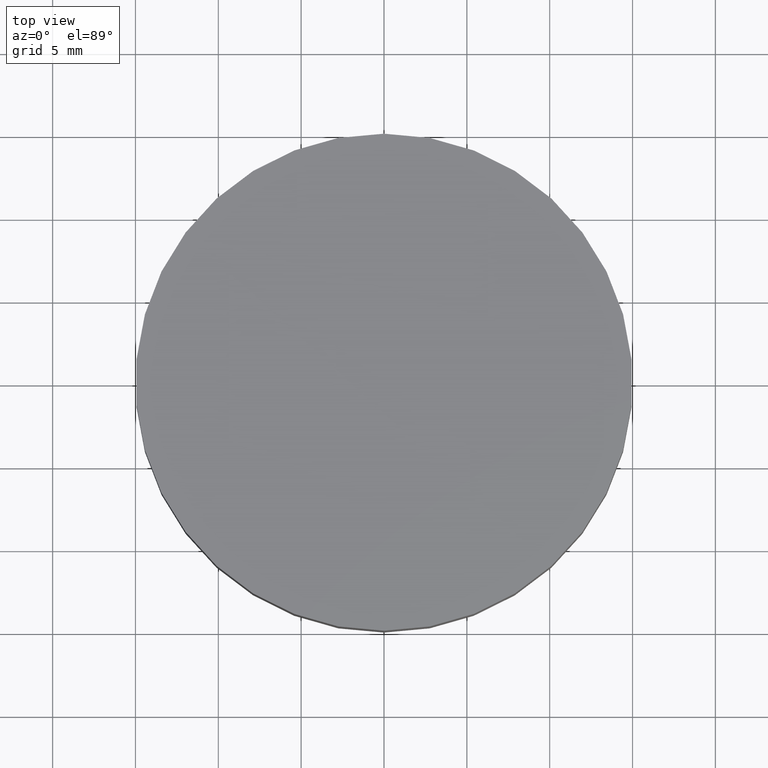
[diagram: clean part render]
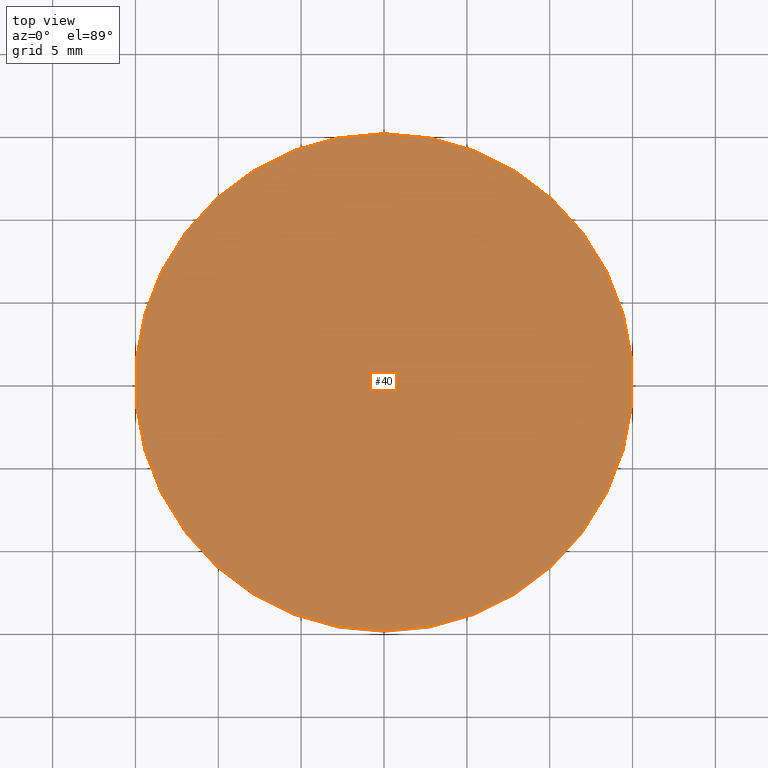
[diagram: same view with one face highlighted and labeled with its STEP entity id]
A machine part, top view. The second image highlights one B-rep face of the part: STEP entity #40.
In plain terms, the highlighted planar face has unit normal (0, 0, 1).
Its self-contained STEP definition (entity closure, byte-faithful):
#40 = ADVANCED_FACE ( 'NONE', ( #240 ), #477, .T. ) ;
#84 = AXIS2_PLACEMENT_3D ( 'NONE', #392, #570, #964 ) ;
#94 = CARTESIAN_POINT ( 'NONE',  ( 0.000000000000000000, 0.000000000000000000, 12.50000000000000000 ) ) ;
#115 = CARTESIAN_POINT ( 'NONE',  ( 0.000000000000000000, 15.00000000000000000, 12.50000000000000000 ) ) ;
#150 = EDGE_CURVE ( 'NONE', #907, #892, #583, .T. ) ;
#240 = FACE_OUTER_BOUND ( 'NONE', #547, .T. ) ;
#392 = CARTESIAN_POINT ( 'NONE',  ( 0.000000000000000000, 0.000000000000000000, 12.50000000000000000 ) ) ;
#395 = CIRCLE ( 'NONE', #675, 15.00000000000000000 ) ;
#431 = DIRECTION ( 'NONE',  ( 0.000000000000000000, 0.000000000000000000, -1.000000000000000000 ) ) ;
#477 = PLANE ( 'NONE',  #84 ) ;
#484 = ORIENTED_EDGE ( 'NONE', *, *, #150, .F. ) ;
#491 = DIRECTION ( 'NONE',  ( 0.000000000000000000, 0.000000000000000000, -1.000000000000000000 ) ) ;
#537 = EDGE_CURVE ( 'NONE', #892, #907, #395, .T. ) ;
#547 = EDGE_LOOP ( 'NONE', ( #821, #484 ) ) ;
#550 = DIRECTION ( 'NONE',  ( 0.000000000000000000, 1.000000000000000000, 0.000000000000000000 ) ) ;
#570 = DIRECTION ( 'NONE',  ( 0.000000000000000000, 0.000000000000000000, 1.000000000000000000 ) ) ;
#583 = CIRCLE ( 'NONE', #695, 15.00000000000000000 ) ;
#675 = AXIS2_PLACEMENT_3D ( 'NONE', #94, #431, #854 ) ;
#695 = AXIS2_PLACEMENT_3D ( 'NONE', #815, #491, #550 ) ;
#785 = CARTESIAN_POINT ( 'NONE',  ( 1.836970198721029589E-15, -15.00000000000000000, 12.50000000000000000 ) ) ;
#815 = CARTESIAN_POINT ( 'NONE',  ( 0.000000000000000000, 0.000000000000000000, 12.50000000000000000 ) ) ;
#821 = ORIENTED_EDGE ( 'NONE', *, *, #537, .F. ) ;
#854 = DIRECTION ( 'NONE',  ( 0.000000000000000000, 1.000000000000000000, 0.000000000000000000 ) ) ;
#892 = VERTEX_POINT ( 'NONE', #115 ) ;
#907 = VERTEX_POINT ( 'NONE', #785 ) ;
#964 = DIRECTION ( 'NONE',  ( 1.000000000000000000, 0.000000000000000000, 0.000000000000000000 ) ) ;